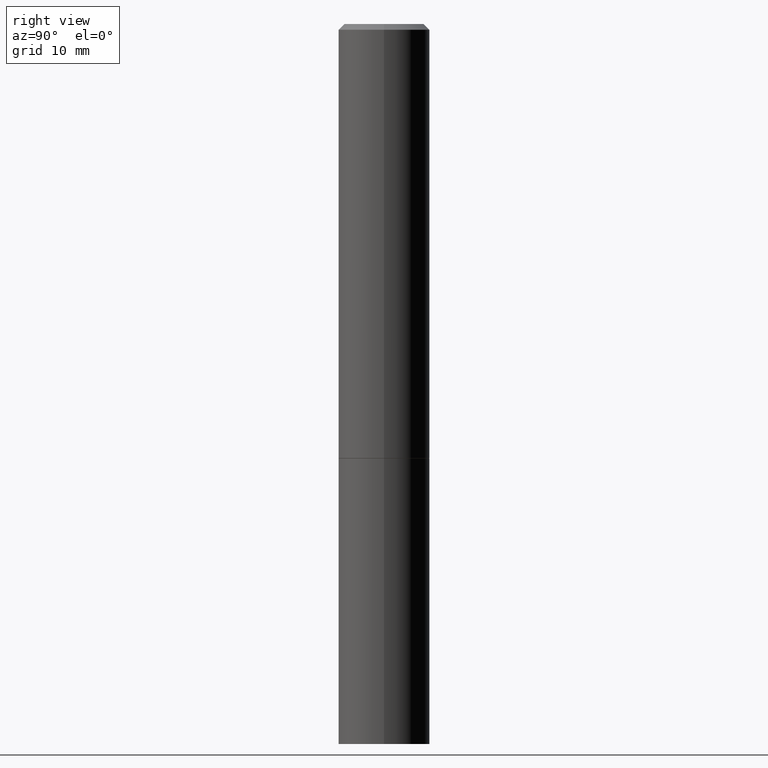
[diagram: clean part render]
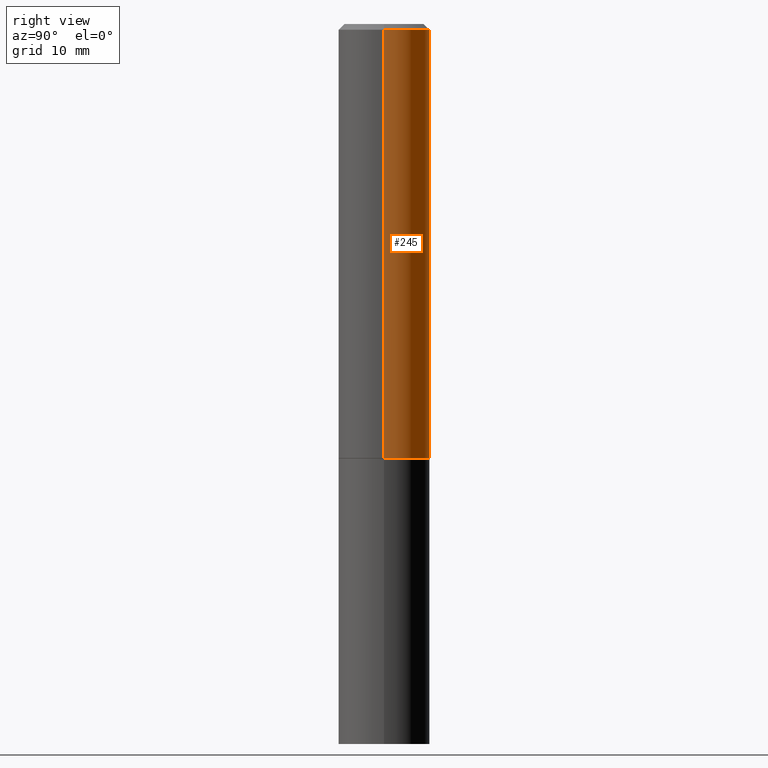
[diagram: same view with one face highlighted and labeled with its STEP entity id]
A machine part, right view. The second image highlights one B-rep face of the part: STEP entity #245.
In plain terms, the highlighted cylindrical surface (partial cylindrical patch) has radius 4.0005 mm, axis along (-0, 0, 1).
Its self-contained STEP definition (entity closure, byte-faithful):
#2 = VERTEX_POINT ( 'NONE', #44 ) ;
#10 = DIRECTION ( 'NONE',  ( -2.445468806185136877E-29, 3.491481338843145188E-15, 1.000000000000000000 ) ) ;
#32 = CARTESIAN_POINT ( 'NONE',  ( 0.1575000000000000011, -6.319581223306091410E-15, -1.495000000000000329 ) ) ;
#37 = LINE ( 'NONE', #285, #161 ) ;
#39 = EDGE_CURVE ( 'NONE', #2, #314, #37, .T. ) ;
#44 = CARTESIAN_POINT ( 'NONE',  ( -0.1575000000000000011, -1.525692305351524236E-15, -1.495000000000000329 ) ) ;
#46 = CARTESIAN_POINT ( 'NONE',  ( 4.890937612370281041E-31, -6.982962677686302702E-17, -0.02000000000000003511 ) ) ;
#67 = CARTESIAN_POINT ( 'NONE',  ( 0.1574999999999998901, -1.099816621735586297E-15, 7.679978421878593829E-30 ) ) ;
#75 = VECTOR ( 'NONE', #10, 39.37007874015748143 ) ;
#82 = EDGE_LOOP ( 'NONE', ( #195, #310, #135, #141 ) ) ;
#88 = CARTESIAN_POINT ( 'NONE',  ( -0.1574999999999997791, 1.029986994958722407E-15, -0.02000000000000003511 ) ) ;
#99 = DIRECTION ( 'NONE',  ( -2.445468806185136597E-29, 3.491481338843145583E-15, 1.000000000000000000 ) ) ;
#109 = EDGE_CURVE ( 'NONE', #111, #314, #243, .T. ) ;
#111 = VERTEX_POINT ( 'NONE', #353 ) ;
#112 = EDGE_CURVE ( 'NONE', #153, #2, #307, .T. ) ;
#113 = CARTESIAN_POINT ( 'NONE',  ( 0.000000000000000000, 0.000000000000000000, 0.000000000000000000 ) ) ;
#123 = DIRECTION ( 'NONE',  ( 1.000000000000000000, -6.982962677686266711E-15, 0.000000000000000000 ) ) ;
#135 = ORIENTED_EDGE ( 'NONE', *, *, #109, .F. ) ;
#141 = ORIENTED_EDGE ( 'NONE', *, *, #333, .F. ) ;
#146 = DIRECTION ( 'NONE',  ( 1.000000000000000000, -6.982962677686266711E-15, 4.876176775795935793E-29 ) ) ;
#147 = DIRECTION ( 'NONE',  ( -2.445468806185136597E-29, 3.491481338843145583E-15, 1.000000000000000000 ) ) ;
#153 = VERTEX_POINT ( 'NONE', #32 ) ;
#161 = VECTOR ( 'NONE', #255, 39.37007874015748143 ) ;
#195 = ORIENTED_EDGE ( 'NONE', *, *, #112, .T. ) ;
#196 = FACE_OUTER_BOUND ( 'NONE', #82, .T. ) ;
#207 = CARTESIAN_POINT ( 'NONE',  ( 3.655975865246779683E-29, -5.219764601570503930E-15, -1.495000000000000329 ) ) ;
#218 = LINE ( 'NONE', #67, #75 ) ;
#243 = CIRCLE ( 'NONE', #286, 0.1574999999999997791 ) ;
#245 = ADVANCED_FACE ( 'NONE', ( #196 ), #346, .T. ) ;
#255 = DIRECTION ( 'NONE',  ( -2.445468806185136877E-29, 3.491481338843145188E-15, 1.000000000000000000 ) ) ;
#282 = DIRECTION ( 'NONE',  ( -2.445468806185136597E-29, 3.491481338843145583E-15, 1.000000000000000000 ) ) ;
#285 = CARTESIAN_POINT ( 'NONE',  ( -0.1574999999999998901, 1.119104808822157012E-15, -7.747322767151471379E-30 ) ) ;
#286 = AXIS2_PLACEMENT_3D ( 'NONE', #46, #147, #123 ) ;
#295 = AXIS2_PLACEMENT_3D ( 'NONE', #113, #282, #146 ) ;
#299 = DIRECTION ( 'NONE',  ( 1.000000000000000000, -6.982962677686268288E-15, 0.000000000000000000 ) ) ;
#307 = CIRCLE ( 'NONE', #345, 0.1575000000000000011 ) ;
#310 = ORIENTED_EDGE ( 'NONE', *, *, #39, .T. ) ;
#314 = VERTEX_POINT ( 'NONE', #88 ) ;
#333 = EDGE_CURVE ( 'NONE', #153, #111, #218, .T. ) ;
#345 = AXIS2_PLACEMENT_3D ( 'NONE', #207, #99, #299 ) ;
#346 = CYLINDRICAL_SURFACE ( 'NONE', #295, 0.1574999999999998901 ) ;
#353 = CARTESIAN_POINT ( 'NONE',  ( 0.1574999999999997791, -1.150358061425877894E-15, -0.02000000000000003511 ) ) ;